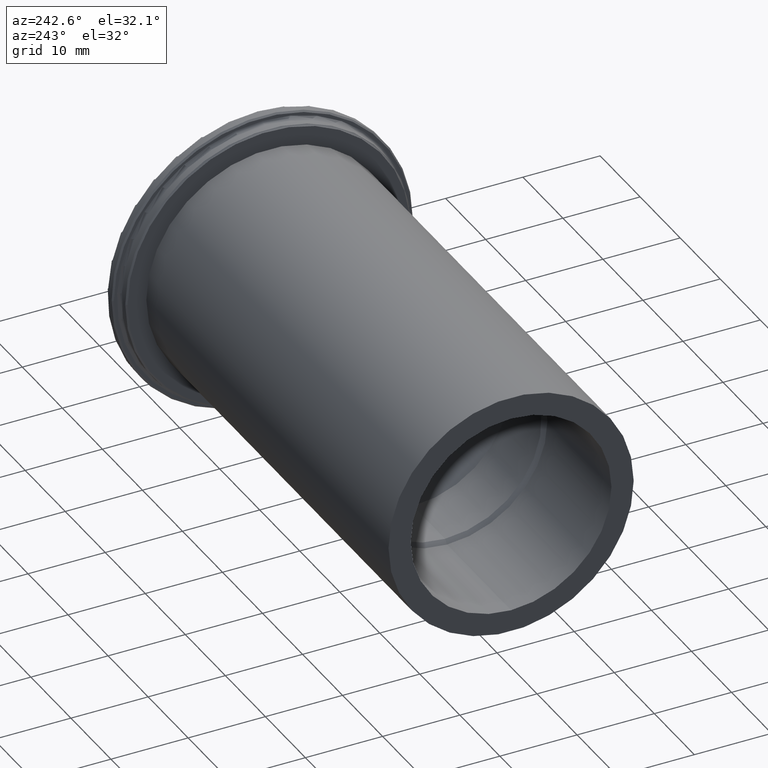
[diagram: clean part render]
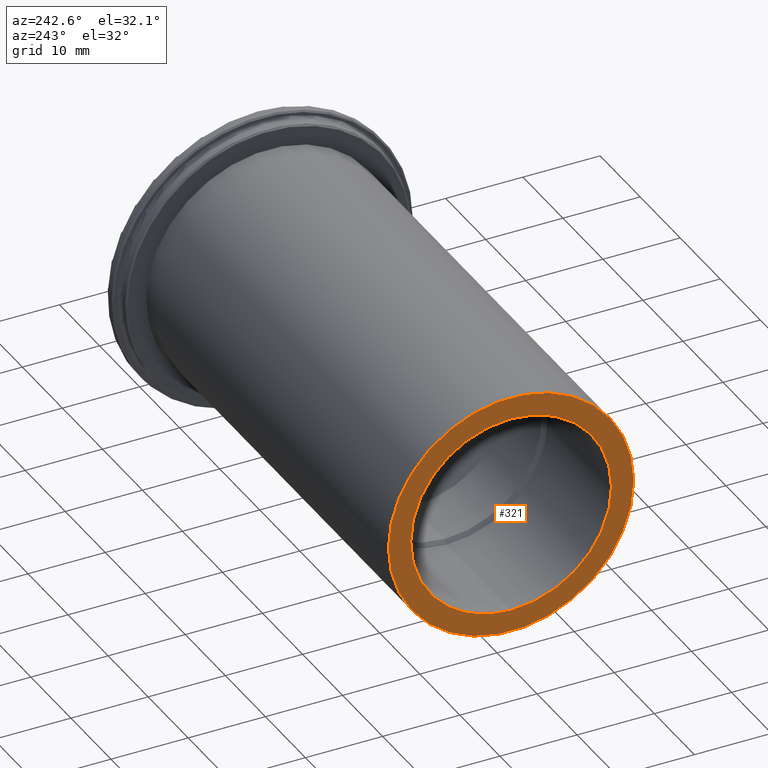
[diagram: same view with one face highlighted and labeled with its STEP entity id]
A machine part, auxiliary view. The second image highlights one B-rep face of the part: STEP entity #321.
In plain terms, the highlighted planar face has unit normal (-1, 0, 0).
Its self-contained STEP definition (entity closure, byte-faithful):
#90=FACE_BOUND('',#133,.T.);
#94=PLANE('',#382);
#113=FACE_OUTER_BOUND('',#132,.T.);
#132=EDGE_LOOP('',(#295));
#133=EDGE_LOOP('',(#296));
#161=CIRCLE('',#357,13.);
#177=CIRCLE('',#383,15.875);
#187=VERTEX_POINT('',#545);
#201=VERTEX_POINT('',#590);
#212=EDGE_CURVE('',#187,#187,#161,.T.);
#233=EDGE_CURVE('',#201,#201,#177,.T.);
#295=ORIENTED_EDGE('',*,*,#233,.F.);
#296=ORIENTED_EDGE('',*,*,#212,.T.);
#321=ADVANCED_FACE('',(#113,#90),#94,.T.);
#357=AXIS2_PLACEMENT_3D('',#546,#429,#430);
#382=AXIS2_PLACEMENT_3D('',#589,#484,#485);
#383=AXIS2_PLACEMENT_3D('',#591,#486,#487);
#429=DIRECTION('center_axis',(1.,0.,0.));
#430=DIRECTION('ref_axis',(0.,0.,1.));
#484=DIRECTION('center_axis',(-1.,0.,0.));
#485=DIRECTION('ref_axis',(0.,0.,1.));
#486=DIRECTION('center_axis',(1.,0.,0.));
#487=DIRECTION('ref_axis',(0.,0.,-1.));
#545=CARTESIAN_POINT('',(-63.5,-1.59204083889156E-15,-13.));
#546=CARTESIAN_POINT('Origin',(-63.5,0.,0.));
#589=CARTESIAN_POINT('Origin',(-63.5,15.875,0.));
#590=CARTESIAN_POINT('',(-63.5,-15.875,-1.94412679364642E-15));
#591=CARTESIAN_POINT('Origin',(-63.5,0.,0.));